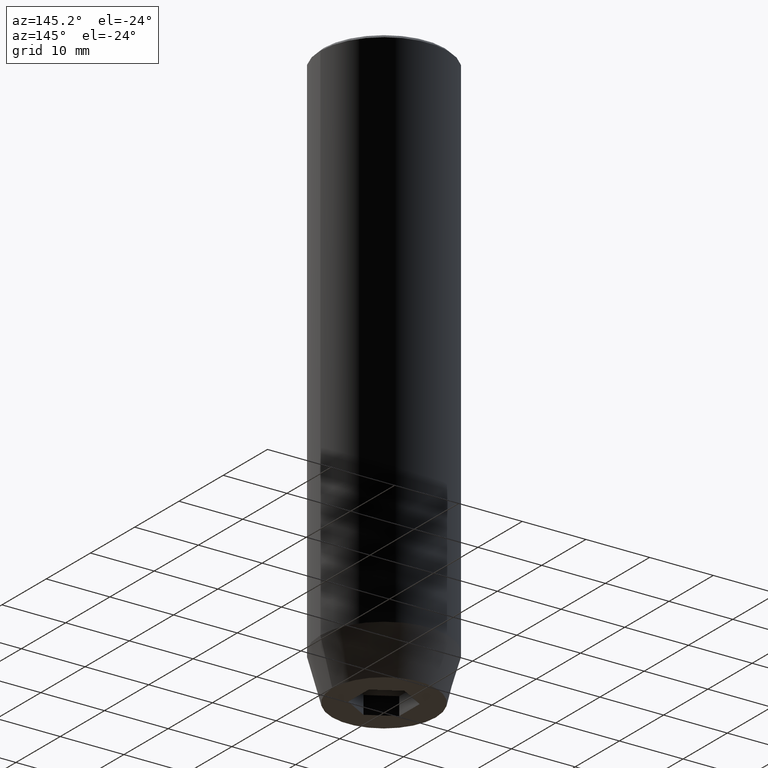
[diagram: clean part render]
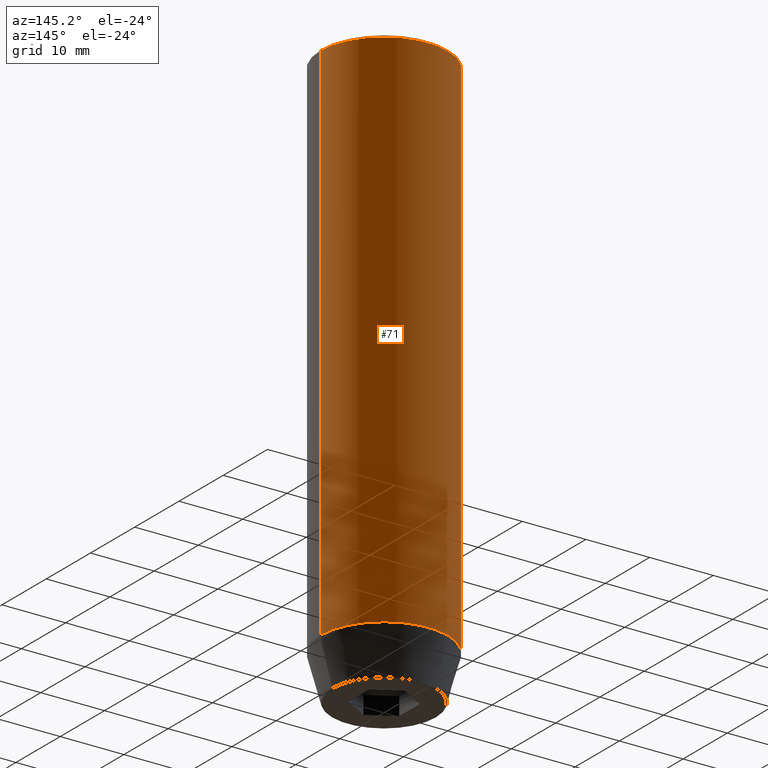
[diagram: same view with one face highlighted and labeled with its STEP entity id]
A machine part, auxiliary view. The second image highlights one B-rep face of the part: STEP entity #71.
In plain terms, the highlighted cylindrical surface (partial cylindrical patch) has radius 10 mm, axis along (-0, -0, 1).
Its self-contained STEP definition (entity closure, byte-faithful):
#14 = LINE ( 'NONE', #196, #105 ) ;
#24 = VECTOR ( 'NONE', #313, 1000.000000000000000 ) ;
#27 = DIRECTION ( 'NONE',  ( -0.000000000000000000, -0.000000000000000000, 1.000000000000000000 ) ) ;
#64 = EDGE_CURVE ( 'NONE', #467, #365, #537, .T. ) ;
#70 = DIRECTION ( 'NONE',  ( -0.000000000000000000, -0.000000000000000000, 1.000000000000000000 ) ) ;
#71 = ADVANCED_FACE ( 'NONE', ( #380 ), #163, .T. ) ;
#105 = VECTOR ( 'NONE', #70, 1000.000000000000000 ) ;
#111 = VERTEX_POINT ( 'NONE', #211 ) ;
#115 = ORIENTED_EDGE ( 'NONE', *, *, #435, .F. ) ;
#128 = DIRECTION ( 'NONE',  ( 1.000000000000000000, 0.000000000000000000, 0.000000000000000000 ) ) ;
#141 = VERTEX_POINT ( 'NONE', #228 ) ;
#146 = CARTESIAN_POINT ( 'NONE',  ( 10.00000000000000000, 0.000000000000000000, 0.000000000000000000 ) ) ;
#158 = EDGE_LOOP ( 'NONE', ( #401, #178, #408, #115 ) ) ;
#163 = CYLINDRICAL_SURFACE ( 'NONE', #366, 10.00000000000000000 ) ;
#178 = ORIENTED_EDGE ( 'NONE', *, *, #443, .T. ) ;
#180 = CARTESIAN_POINT ( 'NONE',  ( 0.000000000000000000, 0.000000000000000000, -0.5000000000000125455 ) ) ;
#183 = AXIS2_PLACEMENT_3D ( 'NONE', #180, #369, #224 ) ;
#196 = CARTESIAN_POINT ( 'NONE',  ( -10.00000000000000000, 1.224646799147353256E-15, 0.000000000000000000 ) ) ;
#211 = CARTESIAN_POINT ( 'NONE',  ( 10.00000000000000000, 0.000000000000000000, -0.5000000000000125455 ) ) ;
#224 = DIRECTION ( 'NONE',  ( 1.000000000000000000, 0.000000000000000000, 0.000000000000000000 ) ) ;
#228 = CARTESIAN_POINT ( 'NONE',  ( -10.00000000000000000, 1.224646799147353256E-15, -0.5000000000000125455 ) ) ;
#231 = CARTESIAN_POINT ( 'NONE',  ( -10.00000000000000000, 1.224646799147353256E-15, -82.99999999999998579 ) ) ;
#249 = CARTESIAN_POINT ( 'NONE',  ( 0.000000000000000000, 0.000000000000000000, -82.99999999999998579 ) ) ;
#252 = AXIS2_PLACEMENT_3D ( 'NONE', #249, #27, #128 ) ;
#313 = DIRECTION ( 'NONE',  ( -0.000000000000000000, -0.000000000000000000, 1.000000000000000000 ) ) ;
#321 = CIRCLE ( 'NONE', #183, 10.00000000000000000 ) ;
#363 = CARTESIAN_POINT ( 'NONE',  ( 10.00000000000000000, 0.000000000000000000, -82.99999999999998579 ) ) ;
#365 = VERTEX_POINT ( 'NONE', #231 ) ;
#366 = AXIS2_PLACEMENT_3D ( 'NONE', #572, #489, #582 ) ;
#369 = DIRECTION ( 'NONE',  ( 0.000000000000000000, 0.000000000000000000, -1.000000000000000000 ) ) ;
#372 = EDGE_CURVE ( 'NONE', #141, #111, #321, .T. ) ;
#380 = FACE_OUTER_BOUND ( 'NONE', #158, .T. ) ;
#401 = ORIENTED_EDGE ( 'NONE', *, *, #64, .T. ) ;
#408 = ORIENTED_EDGE ( 'NONE', *, *, #372, .T. ) ;
#435 = EDGE_CURVE ( 'NONE', #467, #111, #548, .T. ) ;
#443 = EDGE_CURVE ( 'NONE', #365, #141, #14, .T. ) ;
#467 = VERTEX_POINT ( 'NONE', #363 ) ;
#489 = DIRECTION ( 'NONE',  ( -0.000000000000000000, -0.000000000000000000, 1.000000000000000000 ) ) ;
#537 = CIRCLE ( 'NONE', #252, 10.00000000000000000 ) ;
#548 = LINE ( 'NONE', #146, #24 ) ;
#572 = CARTESIAN_POINT ( 'NONE',  ( 0.000000000000000000, 0.000000000000000000, 0.000000000000000000 ) ) ;
#582 = DIRECTION ( 'NONE',  ( 1.000000000000000000, 0.000000000000000000, 0.000000000000000000 ) ) ;